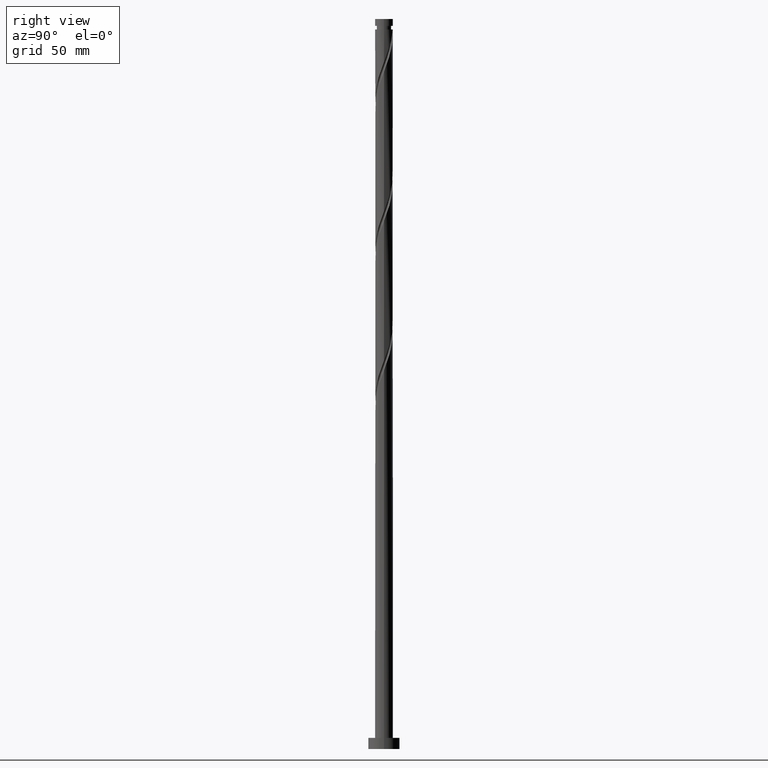
[diagram: clean part render]
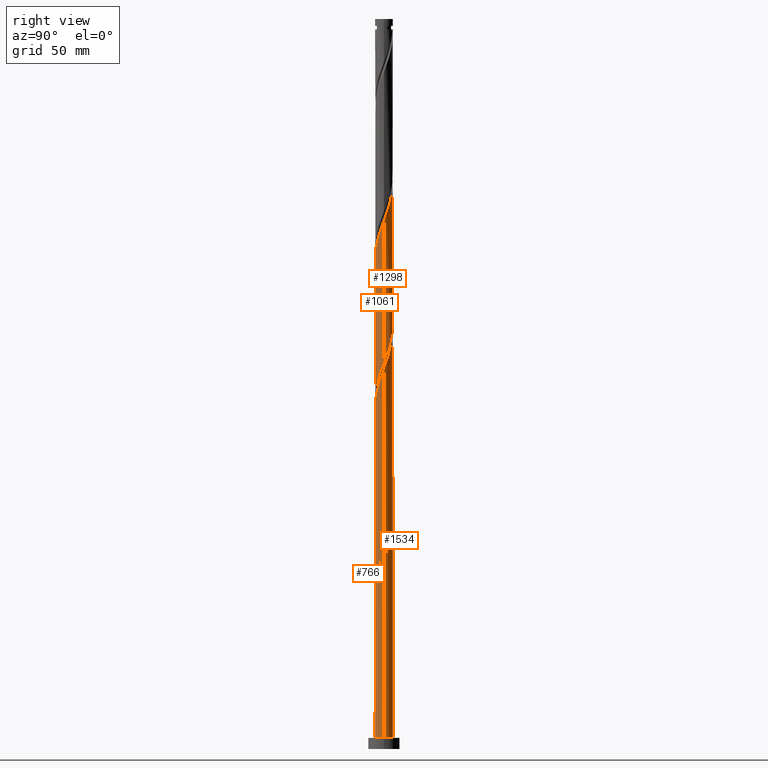
[diagram: same view with one multi-face feature highlighted, each face labeled with its STEP entity id]
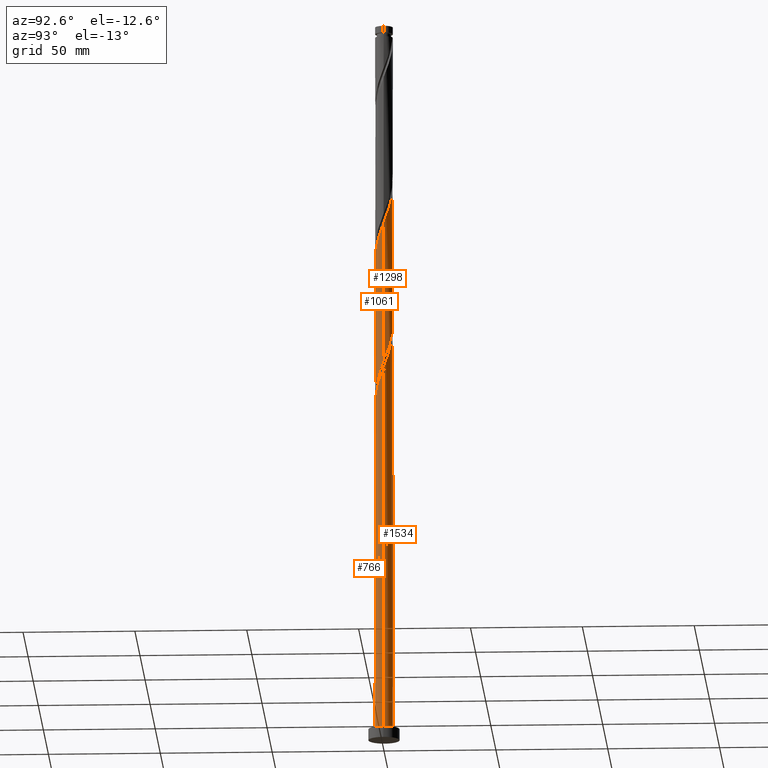
[diagram: same view with one multi-face feature highlighted, each face labeled with its STEP entity id]
A machine part, right view. The highlighted faces form ONE feature: a constant-radius fillet chain: 4 tangent blend faces with common blend radius 4 mm. The faces share edges in the B-rep.
A second angle (auxiliary view) of the same feature is appended — it is thin or edge-on in the first view.
Their STEP definitions:
[1] entity #1298 (Cylinder):
#3 = VERTEX_POINT ( 'NONE', #334 ) ;
#7 = CARTESIAN_POINT ( 'NONE',  ( 1.660148792339432688, 3.639217771347842856, 247.9750467429132357 ) ) ;
#30 = CARTESIAN_POINT ( 'NONE',  ( -0.4568176844692857230, 3.996006507438224276, 191.3083800762465216 ) ) ;
#64 = CARTESIAN_POINT ( 'NONE',  ( -0.7959899496852973488, 3.920000000000005258, 254.6417134095798929 ) ) ;
#65 = EDGE_CURVE ( 'NONE', #1295, #3, #246, .T. ) ;
#74 = CARTESIAN_POINT ( 'NONE',  ( 0.4568176844692878880, 3.996006507438230049, 251.3083800762464932 ) ) ;
#84 = CARTESIAN_POINT ( 'NONE',  ( 4.000000000000000000, 4.898587196589412829E-16, 326.0000000000000000 ) ) ;
#90 = DIRECTION ( 'NONE',  ( -0.000000000000000000, -0.000000000000000000, -1.000000000000000000 ) ) ;
#141 = CARTESIAN_POINT ( 'NONE',  ( -4.000000000000005329, 1.793809850479816147E-16, 269.1829368327250336 ) ) ;
#162 = CARTESIAN_POINT ( 'NONE',  ( -1.660148792339429136, 3.639217771347840191, 194.6417134095798360 ) ) ;
#174 =( BOUNDED_CURVE ( )  B_SPLINE_CURVE ( 2, ( #183, #1439, #657, #1750, #1283, #1599, #967, #356, #1877, #495, #365, #1117, #162, #1726, #818, #30, #666, #984, #507, #1130, #1268, #1739, #684, #408, #1641, #718, #1775, #1920, #386, #1802, #862, #735, #1314 ),
 .UNSPECIFIED., .F., .T. ) 
 B_SPLINE_CURVE_WITH_KNOTS ( ( 3, 2, 2, 2, 2, 2, 2, 2, 2, 2, 2, 2, 2, 2, 2, 2, 3 ),
 ( 0.6795286012773116280, 0.6833333333333333481, 0.6916666666666666519, 0.6999999999999999556, 0.7083333333333333703, 0.7166666666666666741, 0.7249999999999999778, 0.7333333333333332815, 0.7416666666666666963, 0.7500000000000000000, 0.7583333333333333037, 0.7666666666666667185, 0.7750000000000000222, 0.7833333333333333259, 0.7916666666666666297, 0.8000000000000000444, 0.8045286012773114059 ),
 .UNSPECIFIED. ) 
 CURVE ( )  GEOMETRIC_REPRESENTATION_ITEM ( )  RATIONAL_B_SPLINE_CURVE ( ( 0.9066196499552254817, 0.9068171577856383170, 0.9090909090909370383, 0.9041108139711855340, 0.9090909090909370383, 0.9041108139711855340, 0.9090909090909370383, 0.9041108139711855340, 0.9090909090909370383, 0.9041108139711855340, 0.9090909090909370383, 0.9041108139711855340, 0.9090909090909370383, 0.9041108139711855340, 0.9090909090909370383, 0.9041108139711855340, 0.9090909090909370383, 0.9041108139711855340, 0.9090909090909370383, 0.9041108139711855340, 0.9090909090909370383, 0.9041108139711855340, 0.9090909090909370383, 0.9041108139711855340, 0.9090909090909370383, 0.9041108139711855340, 0.9090909090909370383, 0.9041108139711855340, 0.9090909090909370383, 0.9041108139711855340, 0.9090909090909370383, 0.9063845652764843663, 0.9066196499552254817 ) ) 
 REPRESENTATION_ITEM ( '' )  );
#183 = CARTESIAN_POINT ( 'NONE',  ( -3.999999999999999112, 4.738647688350878605E-15, 206.7671566531013809 ) ) ;
#188 = CARTESIAN_POINT ( 'NONE',  ( 4.000000000000006217, 0.1913759971469944365, 236.3581520249557570 ) ) ;
#219 = CARTESIAN_POINT ( 'NONE',  ( -0.3839813474438426022, 4.003661914940843225, 253.5306022984688070 ) ) ;
#230 = CARTESIAN_POINT ( 'NONE',  ( 0.8672346379929752880, 3.904856474016071832, 250.1972689651354358 ) ) ;
#246 = LINE ( 'NONE', #84, #1287 ) ;
#334 = CARTESIAN_POINT ( 'NONE',  ( 3.999999999999999112, 4.858235011716200766E-15, 173.4338233197680665 ) ) ;
#347 = VERTEX_POINT ( 'NONE', #141 ) ;
#356 = CARTESIAN_POINT ( 'NONE',  ( -3.275282252781093639, 2.334368558936168903, 200.1972689651353789 ) ) ;
#359 = CARTESIAN_POINT ( 'NONE',  ( -1.207998551926750208, 3.836338085059167291, 255.7528245206909787 ) ) ;
#365 = CARTESIAN_POINT ( 'NONE',  ( -2.380506478182903951, 3.214527789167364258, 196.8639356318021214 ) ) ;
#380 = CARTESIAN_POINT ( 'NONE',  ( -1.593609487498514721, 3.668842978563509938, 256.8639356318020646 ) ) ;
#386 = CARTESIAN_POINT ( 'NONE',  ( 3.792814557677649301, 1.270652482415431939, 176.8639356318022067 ) ) ;
#390 = CARTESIAN_POINT ( 'NONE',  ( 1.277651591516659080, 3.813706440593914948, 249.0861578540242647 ) ) ;
#408 = CARTESIAN_POINT ( 'NONE',  ( 2.663940864372329909, 3.013331955735995660, 182.4194911873576643 ) ) ;
#468 = CARTESIAN_POINT ( 'NONE',  ( 2.718366963203611153, 2.964326476232963969, 244.6417134095798929 ) ) ;
#495 = CARTESIAN_POINT ( 'NONE',  ( -2.718366963203606268, 2.964326476232961305, 197.9750467429132073 ) ) ;
#507 = CARTESIAN_POINT ( 'NONE',  ( 0.7959899496852986811, 3.919999999999999929, 187.9750467429132073 ) ) ;
#538 = AXIS2_PLACEMENT_3D ( 'NONE', #937, #1546, #598 ) ;
#557 = DIRECTION ( 'NONE',  ( -0.000000000000000000, -0.000000000000000000, -1.000000000000000000 ) ) ;
#563 = CARTESIAN_POINT ( 'NONE',  ( -3.926365515130360695, 0.8720116088262028775, 266.8639356318020077 ) ) ;
#598 = DIRECTION ( 'NONE',  ( -1.000000000000000000, 0.000000000000000000, 0.000000000000000000 ) ) ;
#617 = LINE ( 'NONE', #1040, #1124 ) ;
#632 = CARTESIAN_POINT ( 'NONE',  ( 3.482167122072591159, 1.968378046503449275, 241.3083800762465216 ) ) ;
#657 = CARTESIAN_POINT ( 'NONE',  ( -3.981729436060731153, 0.3818778574459180675, 205.7528245206910356 ) ) ;
#666 = CARTESIAN_POINT ( 'NONE',  ( -0.03641816851271968691, 3.999834211189531086, 190.1972689651354358 ) ) ;
#678 = CARTESIAN_POINT ( 'NONE',  ( -3.232234306894794074, 2.393618973367500846, 262.4194911873576075 ) ) ;
#682 = VERTEX_POINT ( 'NONE', #1869 ) ;
#684 = CARTESIAN_POINT ( 'NONE',  ( 2.321580643721306014, 3.257339913901919903, 183.5306022984688070 ) ) ;
#688 = CARTESIAN_POINT ( 'NONE',  ( -4.000000000000005329, 1.793809850479816147E-16, 269.1829368327250336 ) ) ;
#699 = CARTESIAN_POINT ( 'NONE',  ( -1.979220423070278789, 3.501347872067851252, 257.9750467429131504 ) ) ;
#709 = CARTESIAN_POINT ( 'NONE',  ( -2.321580643721305570, 3.257339913901927009, 259.0861578540243499 ) ) ;
#715 = EDGE_CURVE ( 'NONE', #682, #3, #174, .T. ) ;
#718 = CARTESIAN_POINT ( 'NONE',  ( 3.232234306894791853, 2.393618973367495073, 180.1972689651354358 ) ) ;
#735 = CARTESIAN_POINT ( 'NONE',  ( 3.999999999999999112, 0.2278949497857320761, 174.0394146291525885 ) ) ;
#736 = EDGE_LOOP ( 'NONE', ( #749, #1724, #1767, #1861 ) ) ;
#749 = ORIENTED_EDGE ( 'NONE', *, *, #1574, .F. ) ;
#758 = CYLINDRICAL_SURFACE ( 'NONE', #538, 4.000000000000000000 ) ;
#796 = CARTESIAN_POINT ( 'NONE',  ( 3.689051991364082905, 1.602387534070725872, 240.1972689651354074 ) ) ;
#818 = CARTESIAN_POINT ( 'NONE',  ( -0.8672346379929704030, 3.904856474016069612, 192.4194911873576928 ) ) ;
#822 = CARTESIAN_POINT ( 'NONE',  ( 3.941592455888989655, 0.8003744848579132931, 237.9750467429131504 ) ) ;
#845 = CARTESIAN_POINT ( 'NONE',  ( -3.659263600224945012, 1.669293356004671880, 264.6417134095798929 ) ) ;
#862 = CARTESIAN_POINT ( 'NONE',  ( 3.974115965681417784, 0.4543151893961389631, 174.6417134095798929 ) ) ;
#937 = CARTESIAN_POINT ( 'NONE',  ( 0.000000000000000000, 0.000000000000000000, 326.0000000000000000 ) ) ;
#967 = CARTESIAN_POINT ( 'NONE',  ( -3.482167122072584942, 1.968378046503447942, 201.3083800762465501 ) ) ;
#984 = CARTESIAN_POINT ( 'NONE',  ( 0.3839813474438459329, 4.003661914940836120, 189.0861578540242931 ) ) ;
#1040 = CARTESIAN_POINT ( 'NONE',  ( -4.000000000000000000, 0.000000000000000000, 326.0000000000000000 ) ) ;
#1096 =( BOUNDED_CURVE ( )  B_SPLINE_CURVE ( 2, ( #1893, #188, #1425, #822, #1743, #796, #632, #1253, #1851, #468, #1417, #1865, #7, #390, #230, #74, #1454, #219, #64, #359, #380, #699, #709, #1612, #1144, #678, #1299, #845, #1464, #563, #1944, #1479, #688 ),
 .UNSPECIFIED., .F., .T. ) 
 B_SPLINE_CURVE_WITH_KNOTS ( ( 3, 2, 2, 2, 2, 2, 2, 2, 2, 2, 2, 2, 2, 2, 2, 2, 3 ),
 ( 0.4295286012773114614, 0.4333333333333333481, 0.4416666666666666519, 0.4499999999999999556, 0.4583333333333333703, 0.4666666666666666741, 0.4749999999999999778, 0.4833333333333332815, 0.4916666666666666963, 0.5000000000000000000, 0.5083333333333333037, 0.5166666666666666075, 0.5250000000000000222, 0.5333333333333333259, 0.5416666666666667407, 0.5500000000000000444, 0.5545286012773112949 ),
 .UNSPECIFIED. ) 
 CURVE ( )  GEOMETRIC_REPRESENTATION_ITEM ( )  RATIONAL_B_SPLINE_CURVE ( ( 0.9066196499552313659, 0.9068171577856440901, 0.9090909090909430335, 0.9041108139711913072, 0.9090909090909430335, 0.9041108139711913072, 0.9090909090909430335, 0.9041108139711913072, 0.9090909090909430335, 0.9041108139711913072, 0.9090909090909430335, 0.9041108139711913072, 0.9090909090909430335, 0.9041108139711913072, 0.9090909090909430335, 0.9041108139711913072, 0.9090909090909430335, 0.9041108139711913072, 0.9090909090909430335, 0.9041108139711913072, 0.9090909090909430335, 0.9041108139711913072, 0.9090909090909430335, 0.9041108139711913072, 0.9090909090909430335, 0.9041108139711913072, 0.9090909090909430335, 0.9041108139711913072, 0.9090909090909430335, 0.9041108139711913072, 0.9090909090909430335, 0.9063845652764903615, 0.9066196499552313659 ) ) 
 REPRESENTATION_ITEM ( '' )  );
#1117 = CARTESIAN_POINT ( 'NONE',  ( -2.042645993162202522, 3.464729102101767211, 195.7528245206909787 ) ) ;
#1124 = VECTOR ( 'NONE', #90, 1000.000000000000000 ) ;
#1130 = CARTESIAN_POINT ( 'NONE',  ( 1.207998551926752429, 3.836338085059161518, 186.8639356318021214 ) ) ;
#1144 = CARTESIAN_POINT ( 'NONE',  ( -2.948087585633563101, 2.703475464551751806, 261.3083800762465785 ) ) ;
#1253 = CARTESIAN_POINT ( 'NONE',  ( 3.275282252781099412, 2.334368558936169791, 242.4194911873575791 ) ) ;
#1268 = CARTESIAN_POINT ( 'NONE',  ( 1.593609487498514943, 3.668842978563503721, 185.7528245206910071 ) ) ;
#1283 = CARTESIAN_POINT ( 'NONE',  ( -3.815322223626530285, 1.201381009464321137, 203.5306022984688354 ) ) ;
#1287 = VECTOR ( 'NONE', #557, 1000.000000000000000 ) ;
#1295 = VERTEX_POINT ( 'NONE', #1520 ) ;
#1298 = ADVANCED_FACE ( 'NONE', ( #1514 ), #758, .T. ) ;
#1299 = CARTESIAN_POINT ( 'NONE',  ( -3.445748953559869321, 2.031456164686087806, 263.5306022984687502 ) ) ;
#1314 = CARTESIAN_POINT ( 'NONE',  ( 3.999999999999999112, 4.858235011716200766E-15, 173.4338233197680665 ) ) ;
#1417 = CARTESIAN_POINT ( 'NONE',  ( 2.380506478182909724, 3.214527789167367366, 245.7528245206910356 ) ) ;
#1425 = CARTESIAN_POINT ( 'NONE',  ( 3.981729436060737815, 0.3818778574459142927, 236.8639356318021498 ) ) ;
#1439 = CARTESIAN_POINT ( 'NONE',  ( -3.999999999999999112, 0.1913759971470064269, 206.2586081275373431 ) ) ;
#1454 = CARTESIAN_POINT ( 'NONE',  ( 0.03641816851272264288, 3.999834211189538191, 252.4194911873576359 ) ) ;
#1464 = CARTESIAN_POINT ( 'NONE',  ( -3.792814557677652854, 1.270652482415437712, 265.7528245206909787 ) ) ;
#1479 = CARTESIAN_POINT ( 'NONE',  ( -4.000000000000004441, 0.2278949497857409856, 268.5773455233403979 ) ) ;
#1514 = FACE_OUTER_BOUND ( 'NONE', #736, .T. ) ;
#1520 = CARTESIAN_POINT ( 'NONE',  ( 4.000000000000006217, 1.494841542066513406E-15, 235.8496034993917476 ) ) ;
#1546 = DIRECTION ( 'NONE',  ( -0.000000000000000000, -0.000000000000000000, -1.000000000000000000 ) ) ;
#1574 = EDGE_CURVE ( 'NONE', #1295, #347, #1096, .T. ) ;
#1599 = CARTESIAN_POINT ( 'NONE',  ( -3.689051991364075356, 1.602387534070727426, 202.4194911873576643 ) ) ;
#1612 = CARTESIAN_POINT ( 'NONE',  ( -2.663940864372332129, 3.013331955736002321, 260.1972689651353221 ) ) ;
#1641 = CARTESIAN_POINT ( 'NONE',  ( 2.948087585633560437, 2.703475464551747365, 181.3083800762465216 ) ) ;
#1684 = EDGE_CURVE ( 'NONE', #347, #682, #617, .T. ) ;
#1724 = ORIENTED_EDGE ( 'NONE', *, *, #65, .T. ) ;
#1726 = CARTESIAN_POINT ( 'NONE',  ( -1.277651591516654639, 3.813706440593910951, 193.5306022984687786 ) ) ;
#1739 = CARTESIAN_POINT ( 'NONE',  ( 1.979220423070277901, 3.501347872067845479, 184.6417134095798360 ) ) ;
#1743 = CARTESIAN_POINT ( 'NONE',  ( 3.815322223626536502, 1.201381009464319582, 239.0861578540243215 ) ) ;
#1750 = CARTESIAN_POINT ( 'NONE',  ( -3.941592455888983437, 0.8003744848579138482, 204.6417134095798929 ) ) ;
#1767 = ORIENTED_EDGE ( 'NONE', *, *, #715, .F. ) ;
#1775 = CARTESIAN_POINT ( 'NONE',  ( 3.445748953559866212, 2.031456164686082033, 179.0861578540243784 ) ) ;
#1802 = CARTESIAN_POINT ( 'NONE',  ( 3.926365515130356698, 0.8720116088261987697, 175.7528245206909787 ) ) ;
#1851 = CARTESIAN_POINT ( 'NONE',  ( 2.996824607992357947, 2.649347517584565548, 243.5306022984688354 ) ) ;
#1861 = ORIENTED_EDGE ( 'NONE', *, *, #1684, .F. ) ;
#1865 = CARTESIAN_POINT ( 'NONE',  ( 2.042645993162208740, 3.464729102101769875, 246.8639356318020361 ) ) ;
#1869 = CARTESIAN_POINT ( 'NONE',  ( -3.999999999999999112, 4.738647688350878605E-15, 206.7671566531013809 ) ) ;
#1877 = CARTESIAN_POINT ( 'NONE',  ( -2.996824607992349510, 2.649347517584564660, 199.0861578540243784 ) ) ;
#1893 = CARTESIAN_POINT ( 'NONE',  ( 4.000000000000006217, 1.494841542066513604E-15, 235.8496034993917476 ) ) ;
#1920 = CARTESIAN_POINT ( 'NONE',  ( 3.659263600224941015, 1.669293356004667883, 177.9750467429131504 ) ) ;
#1944 = CARTESIAN_POINT ( 'NONE',  ( -3.974115965681422669, 0.4543151893961411281, 267.9750467429131504 ) ) ;
[2] entity #1061 (Cylinder):
#3 = VERTEX_POINT ( 'NONE', #334 ) ;
#39 = EDGE_CURVE ( 'NONE', #1875, #1740, #816, .T. ) ;
#43 = CARTESIAN_POINT ( 'NONE',  ( 3.659263600224944124, -1.669293356004672324, 231.3083800762465216 ) ) ;
#52 = CARTESIAN_POINT ( 'NONE',  ( -3.941592455888989655, -0.8003744848579138482, 204.6417134095798644 ) ) ;
#62 = CARTESIAN_POINT ( 'NONE',  ( -4.000000000000005329, -2.840198929926375689E-15, 202.5162701660584048 ) ) ;
#65 = EDGE_CURVE ( 'NONE', #1295, #3, #246, .T. ) ;
#84 = CARTESIAN_POINT ( 'NONE',  ( 4.000000000000000000, 4.898587196589412829E-16, 326.0000000000000000 ) ) ;
#95 = CARTESIAN_POINT ( 'NONE',  ( -3.792814557677647969, -1.270652482415433715, 143.5306022984687502 ) ) ;
#98 = CARTESIAN_POINT ( 'NONE',  ( 2.321580643721305126, -3.257339913901928341, 225.7528245206910071 ) ) ;
#171 = CARTESIAN_POINT ( 'NONE',  ( 3.999999999999999112, -0.1913759971469969623, 172.9252747942040003 ) ) ;
#208 = CARTESIAN_POINT ( 'NONE',  ( 2.948087585633562657, -2.703475464551751806, 227.9750467429132357 ) ) ;
#217 = CARTESIAN_POINT ( 'NONE',  ( 0.3839813474438448226, -4.003661914940843225, 220.1972689651354358 ) ) ;
#246 = LINE ( 'NONE', #84, #1287 ) ;
#264 = CARTESIAN_POINT ( 'NONE',  ( -2.321580643721303794, -3.257339913901921680, 150.1972689651354358 ) ) ;
#319 = ORIENTED_EDGE ( 'NONE', *, *, #39, .T. ) ;
#334 = CARTESIAN_POINT ( 'NONE',  ( 3.999999999999999112, 4.858235011716200766E-15, 173.4338233197680665 ) ) ;
#335 = CARTESIAN_POINT ( 'NONE',  ( 3.275282252781091863, -2.334368558936170679, 166.8639356318020646 ) ) ;
#345 = CARTESIAN_POINT ( 'NONE',  ( 0.4568176844692852789, -3.996006507438224276, 157.9750467429132357 ) ) ;
#349 = CARTESIAN_POINT ( 'NONE',  ( -0.03641816851272211553, -3.999834211189538191, 219.0861578540243499 ) ) ;
#378 = CARTESIAN_POINT ( 'NONE',  ( -3.815322223626536058, -1.201381009464321359, 205.7528245206910071 ) ) ;
#395 = CARTESIAN_POINT ( 'NONE',  ( -2.663940864372329465, -3.013331955735995660, 149.0861578540242931 ) ) ;
#419 = ORIENTED_EDGE ( 'NONE', *, *, #65, .F. ) ;
#420 = CARTESIAN_POINT ( 'NONE',  ( 3.232234306894793185, -2.393618973367501734, 229.0861578540243215 ) ) ;
#509 = CARTESIAN_POINT ( 'NONE',  ( -3.689051991364082017, -1.602387534070728092, 206.8639356318020361 ) ) ;
#511 = EDGE_CURVE ( 'NONE', #3, #1740, #1979, .T. ) ;
#534 = VECTOR ( 'NONE', #1128, 1000.000000000000000 ) ;
#540 = CARTESIAN_POINT ( 'NONE',  ( 3.974115965681422669, -0.4543151893961415166, 234.6417134095798929 ) ) ;
#557 = DIRECTION ( 'NONE',  ( -0.000000000000000000, -0.000000000000000000, -1.000000000000000000 ) ) ;
#568 = CARTESIAN_POINT ( 'NONE',  ( -4.000000000000000888, 1.589016559216714528E-14, 140.1004899864346953 ) ) ;
#583 = CARTESIAN_POINT ( 'NONE',  ( -2.996824607992354839, -2.649347517584567768, 210.1972689651354074 ) ) ;
#609 = DIRECTION ( 'NONE',  ( -0.000000000000000000, -0.000000000000000000, -1.000000000000000000 ) ) ;
#647 = CARTESIAN_POINT ( 'NONE',  ( 3.689051991364074468, -1.602387534070728536, 169.0861578540243215 ) ) ;
#656 = CARTESIAN_POINT ( 'NONE',  ( 3.981729436060731153, -0.3818778574459192887, 172.4194911873576928 ) ) ;
#672 = CARTESIAN_POINT ( 'NONE',  ( 2.996824607992349065, -2.649347517584566436, 165.7528245206909787 ) ) ;
#686 = CARTESIAN_POINT ( 'NONE',  ( 4.000000000000006217, 1.494841542066513604E-15, 235.8496034993917476 ) ) ;
#697 = CARTESIAN_POINT ( 'NONE',  ( -0.4568176844692873884, -3.996006507438230049, 217.9750467429132073 ) ) ;
#704 = CARTESIAN_POINT ( 'NONE',  ( -4.000000000000000000, -0.2278949497857279405, 140.7060812958192457 ) ) ;
#726 = CARTESIAN_POINT ( 'NONE',  ( -3.659263600224941015, -1.669293356004668549, 144.6417134095798360 ) ) ;
#737 = CARTESIAN_POINT ( 'NONE',  ( -1.277651591516658636, -3.813706440593915392, 215.7528245206909503 ) ) ;
#788 = DIRECTION ( 'NONE',  ( -1.000000000000000000, 0.000000000000000000, 0.000000000000000000 ) ) ;
#816 = LINE ( 'NONE', #1274, #534 ) ;
#853 = CARTESIAN_POINT ( 'NONE',  ( 3.792814557677652409, -1.270652482415439044, 232.4194911873576643 ) ) ;
#873 = CARTESIAN_POINT ( 'NONE',  ( -0.7959899496852983480, -3.919999999999999929, 154.6417134095799497 ) ) ;
#963 = AXIS2_PLACEMENT_3D ( 'NONE', #1983, #609, #788 ) ;
#966 = CARTESIAN_POINT ( 'NONE',  ( 2.718366963203605824, -2.964326476232961749, 164.6417134095798929 ) ) ;
#977 = CARTESIAN_POINT ( 'NONE',  ( 1.979220423070278345, -3.501347872067851696, 224.6417134095798076 ) ) ;
#986 = CARTESIAN_POINT ( 'NONE',  ( -3.275282252781098524, -2.334368558936170679, 209.0861578540243499 ) ) ;
#1005 = CARTESIAN_POINT ( 'NONE',  ( -1.207998551926750652, -3.836338085059161518, 153.5306022984688070 ) ) ;
#1016 = CARTESIAN_POINT ( 'NONE',  ( -1.979220423070277013, -3.501347872067846367, 151.3083800762464932 ) ) ;
#1047 = CARTESIAN_POINT ( 'NONE',  ( -2.948087585633560437, -2.703475464551747365, 147.9750467429132357 ) ) ;
#1061 = ADVANCED_FACE ( 'NONE', ( #1246 ), #1689, .T. ) ;
#1108 = CARTESIAN_POINT ( 'NONE',  ( 3.999999999999999112, 4.858235011716200766E-15, 173.4338233197680665 ) ) ;
#1128 = DIRECTION ( 'NONE',  ( -0.000000000000000000, -0.000000000000000000, -1.000000000000000000 ) ) ;
#1129 = CARTESIAN_POINT ( 'NONE',  ( 1.277651591516653973, -3.813706440593911839, 160.1972689651354074 ) ) ;
#1132 = CARTESIAN_POINT ( 'NONE',  ( -1.660148792339432244, -3.639217771347842856, 214.6417134095799213 ) ) ;
#1142 = CARTESIAN_POINT ( 'NONE',  ( -4.000000000000005329, -0.1913759971470017363, 203.0248186916224427 ) ) ;
#1246 = FACE_OUTER_BOUND ( 'NONE', #1910, .T. ) ;
#1274 = CARTESIAN_POINT ( 'NONE',  ( -4.000000000000000000, 0.000000000000000000, 326.0000000000000000 ) ) ;
#1287 = VECTOR ( 'NONE', #557, 1000.000000000000000 ) ;
#1295 = VERTEX_POINT ( 'NONE', #1520 ) ;
#1296 = CARTESIAN_POINT ( 'NONE',  ( -2.718366963203609821, -2.964326476232964414, 211.3083800762465216 ) ) ;
#1316 = CARTESIAN_POINT ( 'NONE',  ( 0.7959899496852976819, -3.920000000000005258, 221.3083800762465501 ) ) ;
#1342 = CARTESIAN_POINT ( 'NONE',  ( -3.232234306894790077, -2.393618973367496405, 146.8639356318021214 ) ) ;
#1346 = CARTESIAN_POINT ( 'NONE',  ( -4.000000000000000888, 1.589016559216714213E-14, 140.1004899864346953 ) ) ;
#1354 = CARTESIAN_POINT ( 'NONE',  ( 3.445748953559869321, -2.031456164686088695, 230.1972689651354642 ) ) ;
#1364 = ORIENTED_EDGE ( 'NONE', *, *, #1852, .F. ) ;
#1438 = CARTESIAN_POINT ( 'NONE',  ( 2.042645993162201190, -3.464729102101767211, 162.4194911873576928 ) ) ;
#1451 = CARTESIAN_POINT ( 'NONE',  ( -3.482167122072591159, -1.968378046503449275, 207.9750467429132357 ) ) ;
#1467 = CARTESIAN_POINT ( 'NONE',  ( 3.815322223626529397, -1.201381009464323579, 170.1972689651354358 ) ) ;
#1470 = CARTESIAN_POINT ( 'NONE',  ( -2.380506478182908836, -3.214527789167367366, 212.4194911873576928 ) ) ;
#1487 = CARTESIAN_POINT ( 'NONE',  ( -1.593609487498514721, -3.668842978563503721, 152.4194911873576643 ) ) ;
#1520 = CARTESIAN_POINT ( 'NONE',  ( 4.000000000000006217, 1.494841542066513406E-15, 235.8496034993917476 ) ) ;
#1579 =( BOUNDED_CURVE ( )  B_SPLINE_CURVE ( 2, ( #62, #1142, #1768, #52, #378, #509, #1451, #986, #583, #1296, #1470, #1965, #1132, #737, #1804, #697, #349, #217, #1316, #1890, #1922, #977, #98, #1592, #208, #420, #1354, #43, #853, #1752, #540, #1741, #686 ),
 .UNSPECIFIED., .F., .T. ) 
 B_SPLINE_CURVE_WITH_KNOTS ( ( 3, 2, 2, 2, 2, 2, 2, 2, 2, 2, 2, 2, 2, 2, 2, 2, 3 ),
 ( 0.3045286012773115725, 0.3083333333333333481, 0.3166666666666666519, 0.3249999999999999556, 0.3333333333333333703, 0.3416666666666666741, 0.3499999999999999778, 0.3583333333333332815, 0.3666666666666666963, 0.3750000000000000000, 0.3833333333333333037, 0.3916666666666667185, 0.4000000000000000222, 0.4083333333333333259, 0.4166666666666666297, 0.4250000000000000444, 0.4295286012773114614 ),
 .UNSPECIFIED. ) 
 CURVE ( )  GEOMETRIC_REPRESENTATION_ITEM ( )  RATIONAL_B_SPLINE_CURVE ( ( 0.9066196499552313659, 0.9068171577856442012, 0.9090909090909430335, 0.9041108139711913072, 0.9090909090909430335, 0.9041108139711913072, 0.9090909090909430335, 0.9041108139711913072, 0.9090909090909430335, 0.9041108139711913072, 0.9090909090909430335, 0.9041108139711913072, 0.9090909090909430335, 0.9041108139711913072, 0.9090909090909430335, 0.9041108139711913072, 0.9090909090909430335, 0.9041108139711913072, 0.9090909090909430335, 0.9041108139711913072, 0.9090909090909430335, 0.9041108139711913072, 0.9090909090909430335, 0.9041108139711913072, 0.9090909090909430335, 0.9041108139711913072, 0.9090909090909430335, 0.9041108139711913072, 0.9090909090909430335, 0.9041108139711913072, 0.9090909090909430335, 0.9063845652764901395, 0.9066196499552313659 ) ) 
 REPRESENTATION_ITEM ( '' )  );
#1580 = CARTESIAN_POINT ( 'NONE',  ( 2.380506478182902619, -3.214527789167365146, 163.5306022984688639 ) ) ;
#1589 = CARTESIAN_POINT ( 'NONE',  ( 0.03641816851271873628, -3.999834211189531086, 156.8639356318021498 ) ) ;
#1591 = ORIENTED_EDGE ( 'NONE', *, *, #511, .F. ) ;
#1592 = CARTESIAN_POINT ( 'NONE',  ( 2.663940864372332129, -3.013331955736003209, 226.8639356318020930 ) ) ;
#1598 = CARTESIAN_POINT ( 'NONE',  ( 3.482167122072584942, -1.968378046503447942, 167.9750467429132357 ) ) ;
#1629 = CARTESIAN_POINT ( 'NONE',  ( -3.974115965681418672, -0.4543151893961394627, 141.3083800762465501 ) ) ;
#1689 = CYLINDRICAL_SURFACE ( 'NONE', #963, 4.000000000000000000 ) ;
#1738 = CARTESIAN_POINT ( 'NONE',  ( 0.8672346379929689597, -3.904856474016070056, 159.0861578540243784 ) ) ;
#1740 = VERTEX_POINT ( 'NONE', #1346 ) ;
#1741 = CARTESIAN_POINT ( 'NONE',  ( 4.000000000000006217, -0.2278949497857335194, 235.2440121900071688 ) ) ;
#1752 = CARTESIAN_POINT ( 'NONE',  ( 3.926365515130359807, -0.8720116088262054310, 233.5306022984686933 ) ) ;
#1759 = CARTESIAN_POINT ( 'NONE',  ( -4.000000000000005329, -2.840198929926375689E-15, 202.5162701660584048 ) ) ;
#1768 = CARTESIAN_POINT ( 'NONE',  ( -3.981729436060737815, -0.3818778574459164021, 203.5306022984687786 ) ) ;
#1782 = CARTESIAN_POINT ( 'NONE',  ( -0.3839813474438479313, -4.003661914940837008, 155.7528245206909787 ) ) ;
#1801 = CARTESIAN_POINT ( 'NONE',  ( -3.926365515130356698, -0.8720116088262001020, 142.4194911873576643 ) ) ;
#1804 = CARTESIAN_POINT ( 'NONE',  ( -0.8672346379929732896, -3.904856474016073165, 216.8639356318020930 ) ) ;
#1852 = EDGE_CURVE ( 'NONE', #1875, #1295, #1579, .T. ) ;
#1875 = VERTEX_POINT ( 'NONE', #1759 ) ;
#1876 = CARTESIAN_POINT ( 'NONE',  ( 3.941592455888983437, -0.8003744848579144033, 171.3083800762465501 ) ) ;
#1885 = CARTESIAN_POINT ( 'NONE',  ( 1.660148792339428692, -3.639217771347840191, 161.3083800762466069 ) ) ;
#1890 = CARTESIAN_POINT ( 'NONE',  ( 1.207998551926748876, -3.836338085059167291, 222.4194911873576643 ) ) ;
#1910 = EDGE_LOOP ( 'NONE', ( #419, #1364, #319, #1591 ) ) ;
#1922 = CARTESIAN_POINT ( 'NONE',  ( 1.593609487498513833, -3.668842978563509938, 223.5306022984687786 ) ) ;
#1929 = CARTESIAN_POINT ( 'NONE',  ( -3.445748953559866212, -2.031456164686082033, 145.7528245206910356 ) ) ;
#1965 = CARTESIAN_POINT ( 'NONE',  ( -2.042645993162207407, -3.464729102101771208, 213.5306022984687218 ) ) ;
#1979 =( BOUNDED_CURVE ( )  B_SPLINE_CURVE ( 2, ( #1108, #171, #656, #1876, #1467, #647, #1598, #335, #672, #966, #1580, #1438, #1885, #1129, #1738, #345, #1589, #1782, #873, #1005, #1487, #1016, #264, #395, #1047, #1342, #1929, #726, #95, #1801, #1629, #704, #568 ),
 .UNSPECIFIED., .F., .T. ) 
 B_SPLINE_CURVE_WITH_KNOTS ( ( 3, 2, 2, 2, 2, 2, 2, 2, 2, 2, 2, 2, 2, 2, 2, 2, 3 ),
 ( 0.8045286012773114059, 0.8083333333333333481, 0.8166666666666666519, 0.8249999999999999556, 0.8333333333333333703, 0.8416666666666666741, 0.8499999999999999778, 0.8583333333333332815, 0.8666666666666666963, 0.8750000000000000000, 0.8833333333333333037, 0.8916666666666667185, 0.9000000000000000222, 0.9083333333333333259, 0.9166666666666666297, 0.9250000000000000444, 0.9295286012773115170 ),
 .UNSPECIFIED. ) 
 CURVE ( )  GEOMETRIC_REPRESENTATION_ITEM ( )  RATIONAL_B_SPLINE_CURVE ( ( 0.9066196499552254817, 0.9068171577856382060, 0.9090909090909370383, 0.9041108139711855340, 0.9090909090909370383, 0.9041108139711855340, 0.9090909090909370383, 0.9041108139711855340, 0.9090909090909370383, 0.9041108139711855340, 0.9090909090909370383, 0.9041108139711855340, 0.9090909090909370383, 0.9041108139711855340, 0.9090909090909370383, 0.9041108139711855340, 0.9090909090909370383, 0.9041108139711855340, 0.9090909090909370383, 0.9041108139711855340, 0.9090909090909370383, 0.9041108139711855340, 0.9090909090909370383, 0.9041108139711855340, 0.9090909090909370383, 0.9041108139711855340, 0.9090909090909370383, 0.9041108139711855340, 0.9090909090909370383, 0.9041108139711855340, 0.9090909090909370383, 0.9063845652764843663, 0.9066196499552255927 ) ) 
 REPRESENTATION_ITEM ( '' )  );
#1983 = CARTESIAN_POINT ( 'NONE',  ( 0.000000000000000000, 0.000000000000000000, 326.0000000000000000 ) ) ;
[3] entity #1534 (Cylinder):
#16 = DIRECTION ( 'NONE',  ( -0.000000000000000000, -0.000000000000000000, -1.000000000000000000 ) ) ;
#34 = DIRECTION ( 'NONE',  ( -1.000000000000000000, 0.000000000000000000, 0.000000000000000000 ) ) ;
#37 = DIRECTION ( 'NONE',  ( 0.000000000000000000, 1.000000000000000000, -1.040834085586084257E-14 ) ) ;
#39 = EDGE_CURVE ( 'NONE', #1875, #1740, #816, .T. ) ;
#118 = CARTESIAN_POINT ( 'NONE',  ( 0.7959899496852986811, 3.919999999999999929, 121.3083800762465643 ) ) ;
#120 = CARTESIAN_POINT ( 'NONE',  ( -0.7959899496852973488, 3.920000000000005258, 187.9750467429132357 ) ) ;
#128 = CARTESIAN_POINT ( 'NONE',  ( -3.941592455888983437, 0.8003744848579138482, 137.9750467429132357 ) ) ;
#138 = CARTESIAN_POINT ( 'NONE',  ( -3.482167122072584942, 1.968378046503447942, 134.6417134095799213 ) ) ;
#157 = FACE_OUTER_BOUND ( 'NONE', #1899, .T. ) ;
#161 = CARTESIAN_POINT ( 'NONE',  ( 4.000000000000000000, 4.898587196589412829E-16, 5.000000000000000000 ) ) ;
#179 = EDGE_CURVE ( 'NONE', #1194, #1875, #679, .T. ) ;
#228 = CARTESIAN_POINT ( 'NONE',  ( -4.000000000000006217, 0.2278949497857291340, 135.2440121900071688 ) ) ;
#240 = VECTOR ( 'NONE', #585, 1000.000000000000000 ) ;
#266 = VERTEX_POINT ( 'NONE', #161 ) ;
#275 = ORIENTED_EDGE ( 'NONE', *, *, #179, .F. ) ;
#276 = DIRECTION ( 'NONE',  ( 0.000000000000000000, 0.000000000000000000, 1.000000000000000000 ) ) ;
#286 = CARTESIAN_POINT ( 'NONE',  ( 0.000000000000000000, 0.000000000000000000, 5.000000000000000000 ) ) ;
#297 = CARTESIAN_POINT ( 'NONE',  ( 3.815322223626536502, 1.201381009464319582, 172.4194911873576643 ) ) ;
#308 = CARTESIAN_POINT ( 'NONE',  ( 0.4568176844692878880, 3.996006507438230049, 184.6417134095799213 ) ) ;
#317 = CARTESIAN_POINT ( 'NONE',  ( 4.000000000000005329, 0.1913759971470014309, 169.6914853582891283 ) ) ;
#321 = CARTESIAN_POINT ( 'NONE',  ( -2.948087585633563101, 2.703475464551751806, 127.9750467429132073 ) ) ;
#329 = EDGE_CURVE ( 'NONE', #266, #1964, #1603, .T. ) ;
#332 = CIRCLE ( 'NONE', #1990, 4.000000000000000000 ) ;
#368 = CARTESIAN_POINT ( 'NONE',  ( -3.659263600224945012, 1.669293356004671880, 131.3083800762465785 ) ) ;
#409 = VERTEX_POINT ( 'NONE', #1868 ) ;
#434 = AXIS2_PLACEMENT_3D ( 'NONE', #954, #16, #34 ) ;
#440 = CARTESIAN_POINT ( 'NONE',  ( -1.660148792339429136, 3.639217771347840191, 127.9750467429132215 ) ) ;
#442 = CARTESIAN_POINT ( 'NONE',  ( -3.974115965681422669, 0.4543151893961411281, 201.3083800762465501 ) ) ;
#449 = CARTESIAN_POINT ( 'NONE',  ( -4.000000000000000888, 1.589016559216714528E-14, 140.1004899864346953 ) ) ;
#451 = CARTESIAN_POINT ( 'NONE',  ( -2.663940864372332129, 3.013331955736002321, 193.5306022984687502 ) ) ;
#460 = CARTESIAN_POINT ( 'NONE',  ( 4.000000000000006217, 1.494841542066513406E-15, 169.1829368327250904 ) ) ;
#462 = CARTESIAN_POINT ( 'NONE',  ( 0.8672346379929752880, 3.904856474016071832, 183.5306022984688070 ) ) ;
#467 = EDGE_CURVE ( 'NONE', #409, #1631, #332, .T. ) ;
#475 = CARTESIAN_POINT ( 'NONE',  ( 3.482167122072591159, 1.968378046503449275, 174.6417134095798644 ) ) ;
#477 = ORIENTED_EDGE ( 'NONE', *, *, #329, .T. ) ;
#506 = CARTESIAN_POINT ( 'NONE',  ( 0.000000000000000000, 0.000000000000000000, 121.3083800762465927 ) ) ;
#518 = CARTESIAN_POINT ( 'NONE',  ( -3.792814557677652854, 1.270652482415437712, 132.4194911873576928 ) ) ;
#534 = VECTOR ( 'NONE', #1128, 1000.000000000000000 ) ;
#585 = DIRECTION ( 'NONE',  ( -0.000000000000000000, -0.000000000000000000, -1.000000000000000000 ) ) ;
#611 = CARTESIAN_POINT ( 'NONE',  ( -0.3839813474438426022, 4.003661914940843225, 186.8639356318021214 ) ) ;
#625 = CARTESIAN_POINT ( 'NONE',  ( -2.948087585633563101, 2.703475464551751806, 194.6417134095798360 ) ) ;
#637 = CARTESIAN_POINT ( 'NONE',  ( 3.981729436060737815, 0.3818778574459142927, 170.1972689651354926 ) ) ;
#679 =( BOUNDED_CURVE ( )  B_SPLINE_CURVE ( 2, ( #1387, #317, #637, #1237, #297, #1248, #475, #1834, #1816, #928, #1078, #940, #1691, #1825, #462, #308, #1549, #611, #120, #1680, #1539, #1102, #1846, #451, #625, #1672, #1712, #948, #1089, #1985, #442, #1700, #1521 ),
 .UNSPECIFIED., .F., .T. ) 
 B_SPLINE_CURVE_WITH_KNOTS ( ( 3, 2, 2, 2, 2, 2, 2, 2, 2, 2, 2, 2, 2, 2, 2, 2, 3 ),
 ( 0.1795286012773116002, 0.1833333333333333481, 0.1916666666666666519, 0.1999999999999999556, 0.2083333333333333703, 0.2166666666666666741, 0.2249999999999999778, 0.2333333333333332815, 0.2416666666666666963, 0.2500000000000000000, 0.2583333333333333037, 0.2666666666666667185, 0.2750000000000000222, 0.2833333333333333259, 0.2916666666666666297, 0.3000000000000000444, 0.3045286012773115725 ),
 .UNSPECIFIED. ) 
 CURVE ( )  GEOMETRIC_REPRESENTATION_ITEM ( )  RATIONAL_B_SPLINE_CURVE ( ( 0.9066196499552314769, 0.9068171577856442012, 0.9090909090909430335, 0.9041108139711913072, 0.9090909090909430335, 0.9041108139711913072, 0.9090909090909430335, 0.9041108139711913072, 0.9090909090909430335, 0.9041108139711913072, 0.9090909090909430335, 0.9041108139711913072, 0.9090909090909430335, 0.9041108139711913072, 0.9090909090909430335, 0.9041108139711913072, 0.9090909090909430335, 0.9041108139711913072, 0.9090909090909430335, 0.9041108139711913072, 0.9090909090909430335, 0.9041108139711913072, 0.9090909090909430335, 0.9041108139711913072, 0.9090909090909430335, 0.9041108139711913072, 0.9090909090909430335, 0.9041108139711913072, 0.9090909090909430335, 0.9041108139711913072, 0.9090909090909430335, 0.9063845652764901395, 0.9066196499552313659 ) ) 
 REPRESENTATION_ITEM ( '' )  );
#705 = LINE ( 'NONE', #994, #1924 ) ;
#706 = ORIENTED_EDGE ( 'NONE', *, *, #1711, .T. ) ;
#730 = CARTESIAN_POINT ( 'NONE',  ( 4.000000000000000000, 4.898587196589412829E-16, 326.0000000000000000 ) ) ;
#778 = CARTESIAN_POINT ( 'NONE',  ( -2.380506478182903951, 3.214527789167364258, 130.1972689651354358 ) ) ;
#793 = EDGE_CURVE ( 'NONE', #1353, #1964, #705, .T. ) ;
#816 = LINE ( 'NONE', #1274, #534 ) ;
#908 = CARTESIAN_POINT ( 'NONE',  ( -0.8672346379929704030, 3.904856474016069612, 125.7528245206910356 ) ) ;
#917 = CARTESIAN_POINT ( 'NONE',  ( -3.275282252781093639, 2.334368558936168903, 133.5306022984687786 ) ) ;
#926 = CARTESIAN_POINT ( 'NONE',  ( -3.689051991364075356, 1.602387534070727426, 135.7528245206909787 ) ) ;
#928 = CARTESIAN_POINT ( 'NONE',  ( 2.718366963203611153, 2.964326476232963969, 177.9750467429132357 ) ) ;
#940 = CARTESIAN_POINT ( 'NONE',  ( 2.042645993162208740, 3.464729102101769875, 180.1972689651354358 ) ) ;
#943 = CARTESIAN_POINT ( 'NONE',  ( -0.7959899496852972378, 3.920000000000005258, 121.3083800762465643 ) ) ;
#948 = CARTESIAN_POINT ( 'NONE',  ( -3.659263600224945012, 1.669293356004671880, 197.9750467429131220 ) ) ;
#952 = CARTESIAN_POINT ( 'NONE',  ( -3.232234306894794074, 2.393618973367500846, 129.0861578540243499 ) ) ;
#954 = CARTESIAN_POINT ( 'NONE',  ( 0.000000000000000000, 0.000000000000000000, 326.0000000000000000 ) ) ;
#985 = ORIENTED_EDGE ( 'NONE', *, *, #1084, .F. ) ;
#988 = AXIS2_PLACEMENT_3D ( 'NONE', #286, #276, #1217 ) ;
#994 = CARTESIAN_POINT ( 'NONE',  ( -4.000000000000000000, 0.000000000000000000, 326.0000000000000000 ) ) ;
#1008 = CARTESIAN_POINT ( 'NONE',  ( -3.974115965681422669, 0.4543151893961411281, 134.6417134095798929 ) ) ;
#1015 =( BOUNDED_CURVE ( )  B_SPLINE_CURVE ( 2, ( #449, #1087, #1048, #128, #1679, #926, #138, #917, #1057, #1536, #778, #1395, #440, #1972, #908, #1993, #1373, #2001, #118 ),
 .UNSPECIFIED., .F., .T. ) 
 B_SPLINE_CURVE_WITH_KNOTS ( ( 3, 2, 2, 2, 2, 2, 2, 2, 2, 3 ),
 ( 0.9295286012773115170, 0.9333333333333333481, 0.9416666666666666519, 0.9499999999999999556, 0.9583333333333333703, 0.9666666666666666741, 0.9749999999999999778, 0.9833333333333332815, 0.9916666666666666963, 1.000000000000000000 ),
 .UNSPECIFIED. ) 
 CURVE ( )  GEOMETRIC_REPRESENTATION_ITEM ( )  RATIONAL_B_SPLINE_CURVE ( ( 0.9066196499552255927, 0.9068171577856383170, 0.9090909090909370383, 0.9041108139711855340, 0.9090909090909370383, 0.9041108139711855340, 0.9090909090909370383, 0.9041108139711855340, 0.9090909090909370383, 0.9041108139711855340, 0.9090909090909370383, 0.9041108139711855340, 0.9090909090909370383, 0.9041108139711855340, 0.9090909090909370383, 0.9041108139711855340, 0.9090909090909370383, 0.9041108139711855340, 0.9090909090909370383 ) ) 
 REPRESENTATION_ITEM ( '' )  );
#1048 = CARTESIAN_POINT ( 'NONE',  ( -3.981729436060731153, 0.3818778574459180675, 139.0861578540243215 ) ) ;
#1057 = CARTESIAN_POINT ( 'NONE',  ( -2.996824607992349510, 2.649347517584564660, 132.4194911873576928 ) ) ;
#1078 = CARTESIAN_POINT ( 'NONE',  ( 2.380506478182909724, 3.214527789167367366, 179.0861578540243499 ) ) ;
#1084 = EDGE_CURVE ( 'NONE', #1740, #1631, #1015, .T. ) ;
#1087 = CARTESIAN_POINT ( 'NONE',  ( -3.999999999999999112, 0.1913759971470008481, 139.5919414608706290 ) ) ;
#1089 = CARTESIAN_POINT ( 'NONE',  ( -3.792814557677652854, 1.270652482415437712, 199.0861578540243499 ) ) ;
#1102 = CARTESIAN_POINT ( 'NONE',  ( -1.979220423070278789, 3.501347872067851252, 191.3083800762465501 ) ) ;
#1128 = DIRECTION ( 'NONE',  ( -0.000000000000000000, -0.000000000000000000, -1.000000000000000000 ) ) ;
#1131 = ORIENTED_EDGE ( 'NONE', *, *, #1827, .F. ) ;
#1163 = CARTESIAN_POINT ( 'NONE',  ( -3.926365515130360695, 0.8720116088262028775, 133.5306022984687786 ) ) ;
#1194 = VERTEX_POINT ( 'NONE', #460 ) ;
#1201 = DIRECTION ( 'NONE',  ( -0.000000000000000000, -0.000000000000000000, -1.000000000000000000 ) ) ;
#1217 = DIRECTION ( 'NONE',  ( 1.000000000000000000, 0.000000000000000000, 0.000000000000000000 ) ) ;
#1237 = CARTESIAN_POINT ( 'NONE',  ( 3.941592455888989655, 0.8003744848579132931, 171.3083800762465785 ) ) ;
#1248 = CARTESIAN_POINT ( 'NONE',  ( 3.689051991364082905, 1.602387534070725872, 173.5306022984687218 ) ) ;
#1263 = CARTESIAN_POINT ( 'NONE',  ( -1.979220423070278789, 3.501347872067851252, 124.6417134095799071 ) ) ;
#1274 = CARTESIAN_POINT ( 'NONE',  ( -4.000000000000000000, 0.000000000000000000, 326.0000000000000000 ) ) ;
#1305 = CARTESIAN_POINT ( 'NONE',  ( -4.000000000000005329, -2.840198929926375689E-15, 135.8496034993917192 ) ) ;
#1346 = CARTESIAN_POINT ( 'NONE',  ( -4.000000000000000888, 1.589016559216714213E-14, 140.1004899864346953 ) ) ;
#1353 = VERTEX_POINT ( 'NONE', #1709 ) ;
#1373 = CARTESIAN_POINT ( 'NONE',  ( -0.03641816851271968691, 3.999834211189531086, 123.5306022984687928 ) ) ;
#1387 = CARTESIAN_POINT ( 'NONE',  ( 4.000000000000006217, 1.494841542066513012E-15, 169.1829368327250620 ) ) ;
#1395 = CARTESIAN_POINT ( 'NONE',  ( -2.042645993162202522, 3.464729102101767211, 129.0861578540243499 ) ) ;
#1415 = CARTESIAN_POINT ( 'NONE',  ( -1.593609487498514721, 3.668842978563509938, 123.5306022984687786 ) ) ;
#1429 = DIRECTION ( 'NONE',  ( 0.000000000000000000, -8.673617379884046516E-15, -1.000000000000000000 ) ) ;
#1521 = CARTESIAN_POINT ( 'NONE',  ( -4.000000000000005329, -2.840198929926375689E-15, 202.5162701660584048 ) ) ;
#1534 = ADVANCED_FACE ( 'NONE', ( #157 ), #1733, .T. ) ;
#1536 = CARTESIAN_POINT ( 'NONE',  ( -2.718366963203606268, 2.964326476232961305, 131.3083800762465501 ) ) ;
#1539 = CARTESIAN_POINT ( 'NONE',  ( -1.593609487498514721, 3.668842978563509938, 190.1972689651354358 ) ) ;
#1549 = CARTESIAN_POINT ( 'NONE',  ( 0.03641816851272264288, 3.999834211189538191, 185.7528245206910071 ) ) ;
#1553 = CARTESIAN_POINT ( 'NONE',  ( -1.207998551926750208, 3.836338085059167291, 122.4194911873576785 ) ) ;
#1565 =( BOUNDED_CURVE ( )  B_SPLINE_CURVE ( 2, ( #943, #1553, #1415, #1263, #1863, #1715, #321, #952, #1620, #368, #518, #1163, #1008, #228, #1305 ),
 .UNSPECIFIED., .F., .T. ) 
 B_SPLINE_CURVE_WITH_KNOTS ( ( 3, 2, 2, 2, 2, 2, 2, 3 ),
 ( 0.000000000000000000, 0.008333333333333303727, 0.01666666666666671848, 0.02500000000000002220, 0.03333333333333332593, 0.04166666666666662966, 0.05000000000000004441, 0.05452860127731153084 ),
 .UNSPECIFIED. ) 
 CURVE ( )  GEOMETRIC_REPRESENTATION_ITEM ( )  RATIONAL_B_SPLINE_CURVE ( ( 0.9090909090909430335, 0.9041108139711913072, 0.9090909090909430335, 0.9041108139711913072, 0.9090909090909430335, 0.9041108139711913072, 0.9090909090909430335, 0.9041108139711913072, 0.9090909090909430335, 0.9041108139711913072, 0.9090909090909430335, 0.9041108139711913072, 0.9090909090909430335, 0.9063845652764901395, 0.9066196499552313659 ) ) 
 REPRESENTATION_ITEM ( '' )  );
#1600 = ORIENTED_EDGE ( 'NONE', *, *, #793, .F. ) ;
#1603 = CIRCLE ( 'NONE', #988, 4.000000000000000000 ) ;
#1620 = CARTESIAN_POINT ( 'NONE',  ( -3.445748953559869321, 2.031456164686087806, 130.1972689651354358 ) ) ;
#1631 = VERTEX_POINT ( 'NONE', #1785 ) ;
#1652 = ORIENTED_EDGE ( 'NONE', *, *, #39, .F. ) ;
#1672 = CARTESIAN_POINT ( 'NONE',  ( -3.232234306894794074, 2.393618973367500846, 195.7528245206910071 ) ) ;
#1679 = CARTESIAN_POINT ( 'NONE',  ( -3.815322223626530285, 1.201381009464321137, 136.8639356318021214 ) ) ;
#1680 = CARTESIAN_POINT ( 'NONE',  ( -1.207998551926750208, 3.836338085059167291, 189.0861578540242931 ) ) ;
#1691 = CARTESIAN_POINT ( 'NONE',  ( 1.660148792339432688, 3.639217771347842856, 181.3083800762465216 ) ) ;
#1700 = CARTESIAN_POINT ( 'NONE',  ( -4.000000000000006217, 0.2278949497857271078, 201.9106788566738828 ) ) ;
#1709 = CARTESIAN_POINT ( 'NONE',  ( -4.000000000000005329, -2.840198929926375689E-15, 135.8496034993917192 ) ) ;
#1711 = EDGE_CURVE ( 'NONE', #1194, #266, #1806, .T. ) ;
#1712 = CARTESIAN_POINT ( 'NONE',  ( -3.445748953559869321, 2.031456164686087806, 196.8639356318021214 ) ) ;
#1715 = CARTESIAN_POINT ( 'NONE',  ( -2.663940864372332129, 3.013331955736002321, 126.8639356318020930 ) ) ;
#1733 = CYLINDRICAL_SURFACE ( 'NONE', #434, 4.000000000000000000 ) ;
#1740 = VERTEX_POINT ( 'NONE', #1346 ) ;
#1759 = CARTESIAN_POINT ( 'NONE',  ( -4.000000000000005329, -2.840198929926375689E-15, 202.5162701660584048 ) ) ;
#1785 = CARTESIAN_POINT ( 'NONE',  ( 0.7959899496852986811, 3.919999999999999929, 121.3083800762465643 ) ) ;
#1803 = ORIENTED_EDGE ( 'NONE', *, *, #467, .T. ) ;
#1806 = LINE ( 'NONE', #730, #240 ) ;
#1816 = CARTESIAN_POINT ( 'NONE',  ( 2.996824607992357947, 2.649347517584565548, 176.8639356318021214 ) ) ;
#1825 = CARTESIAN_POINT ( 'NONE',  ( 1.277651591516659080, 3.813706440593914948, 182.4194911873576359 ) ) ;
#1827 = EDGE_CURVE ( 'NONE', #409, #1353, #1565, .T. ) ;
#1834 = CARTESIAN_POINT ( 'NONE',  ( 3.275282252781099412, 2.334368558936169791, 175.7528245206909787 ) ) ;
#1846 = CARTESIAN_POINT ( 'NONE',  ( -2.321580643721305570, 3.257339913901927009, 192.4194911873577212 ) ) ;
#1863 = CARTESIAN_POINT ( 'NONE',  ( -2.321580643721305570, 3.257339913901927009, 125.7528245206910071 ) ) ;
#1868 = CARTESIAN_POINT ( 'NONE',  ( -0.7959899496852972378, 3.920000000000005258, 121.3083800762465643 ) ) ;
#1875 = VERTEX_POINT ( 'NONE', #1759 ) ;
#1899 = EDGE_LOOP ( 'NONE', ( #275, #706, #477, #1600, #1131, #1803, #985, #1652 ) ) ;
#1900 = CARTESIAN_POINT ( 'NONE',  ( -4.000000000000000000, 0.000000000000000000, 5.000000000000000000 ) ) ;
#1924 = VECTOR ( 'NONE', #1201, 1000.000000000000000 ) ;
#1964 = VERTEX_POINT ( 'NONE', #1900 ) ;
#1972 = CARTESIAN_POINT ( 'NONE',  ( -1.277651591516654639, 3.813706440593910951, 126.8639356318020930 ) ) ;
#1985 = CARTESIAN_POINT ( 'NONE',  ( -3.926365515130360695, 0.8720116088262028775, 200.1972689651354074 ) ) ;
#1990 = AXIS2_PLACEMENT_3D ( 'NONE', #506, #1429, #37 ) ;
#1993 = CARTESIAN_POINT ( 'NONE',  ( -0.4568176844692857230, 3.996006507438224276, 124.6417134095798787 ) ) ;
#2001 = CARTESIAN_POINT ( 'NONE',  ( 0.3839813474438459329, 4.003661914940836120, 122.4194911873576501 ) ) ;
[4] entity #766 (Cylinder):
#9 = DIRECTION ( 'NONE',  ( 0.000000000000000000, 0.000000000000000000, 1.000000000000000000 ) ) ;
#18 = CARTESIAN_POINT ( 'NONE',  ( -2.042645993162207407, -3.464729102101771208, 146.8639356318020930 ) ) ;
#60 = CYLINDRICAL_SURFACE ( 'NONE', #990, 4.000000000000000000 ) ;
#159 = CARTESIAN_POINT ( 'NONE',  ( 2.321580643721305126, -3.257339913901928341, 159.0861578540243215 ) ) ;
#161 = CARTESIAN_POINT ( 'NONE',  ( 4.000000000000000000, 4.898587196589412829E-16, 5.000000000000000000 ) ) ;
#199 = CARTESIAN_POINT ( 'NONE',  ( 4.000000000000006217, -0.2278949497857265527, 168.5773455233405116 ) ) ;
#240 = VECTOR ( 'NONE', #585, 1000.000000000000000 ) ;
#266 = VERTEX_POINT ( 'NONE', #161 ) ;
#303 = EDGE_CURVE ( 'NONE', #1964, #266, #1225, .T. ) ;
#324 = CARTESIAN_POINT ( 'NONE',  ( -2.718366963203609821, -2.964326476232964414, 144.6417134095798644 ) ) ;
#333 = CARTESIAN_POINT ( 'NONE',  ( -3.981729436060737815, -0.3818778574459164021, 136.8639356318020930 ) ) ;
#353 = CARTESIAN_POINT ( 'NONE',  ( 2.948087585633562657, -2.703475464551751806, 161.3083800762465501 ) ) ;
#460 = CARTESIAN_POINT ( 'NONE',  ( 4.000000000000006217, 1.494841542066513406E-15, 169.1829368327250904 ) ) ;
#484 = CARTESIAN_POINT ( 'NONE',  ( -3.941592455888989655, -0.8003744848579138482, 137.9750467429132073 ) ) ;
#492 = CARTESIAN_POINT ( 'NONE',  ( 3.659263600224944124, -1.669293356004672324, 164.6417134095798076 ) ) ;
#493 = EDGE_LOOP ( 'NONE', ( #561, #1497, #1942, #819 ) ) ;
#503 = CARTESIAN_POINT ( 'NONE',  ( -1.660148792339432244, -3.639217771347842856, 147.9750467429132357 ) ) ;
#536 = FACE_OUTER_BOUND ( 'NONE', #493, .T. ) ;
#561 = ORIENTED_EDGE ( 'NONE', *, *, #1711, .F. ) ;
#585 = DIRECTION ( 'NONE',  ( -0.000000000000000000, -0.000000000000000000, -1.000000000000000000 ) ) ;
#646 = CARTESIAN_POINT ( 'NONE',  ( 3.926365515130359807, -0.8720116088262054310, 166.8639356318020646 ) ) ;
#654 = CARTESIAN_POINT ( 'NONE',  ( 1.207998551926748876, -3.836338085059167291, 155.7528245206909503 ) ) ;
#681 = CARTESIAN_POINT ( 'NONE',  ( 3.445748953559869321, -2.031456164686088695, 163.5306022984688639 ) ) ;
#695 = DIRECTION ( 'NONE',  ( -0.000000000000000000, -0.000000000000000000, -1.000000000000000000 ) ) ;
#705 = LINE ( 'NONE', #994, #1924 ) ;
#730 = CARTESIAN_POINT ( 'NONE',  ( 4.000000000000000000, 4.898587196589412829E-16, 326.0000000000000000 ) ) ;
#766 = ADVANCED_FACE ( 'NONE', ( #536 ), #60, .T. ) ;
#793 = EDGE_CURVE ( 'NONE', #1353, #1964, #705, .T. ) ;
#798 = CARTESIAN_POINT ( 'NONE',  ( -2.996824607992354839, -2.649347517584567768, 143.5306022984687786 ) ) ;
#815 = CARTESIAN_POINT ( 'NONE',  ( -2.380506478182908836, -3.214527789167367366, 145.7528245206910071 ) ) ;
#819 = ORIENTED_EDGE ( 'NONE', *, *, #303, .T. ) ;
#825 = CARTESIAN_POINT ( 'NONE',  ( -4.000000000000005329, -0.1913759971469996823, 136.3581520249557570 ) ) ;
#836 = CARTESIAN_POINT ( 'NONE',  ( -0.03641816851272211553, -3.999834211189538191, 152.4194911873576359 ) ) ;
#956 = CARTESIAN_POINT ( 'NONE',  ( 0.7959899496852976819, -3.920000000000005258, 154.6417134095799213 ) ) ;
#982 = CARTESIAN_POINT ( 'NONE',  ( 1.593609487498513833, -3.668842978563509938, 156.8639356318021498 ) ) ;
#990 = AXIS2_PLACEMENT_3D ( 'NONE', #1193, #695, #1324 ) ;
#994 = CARTESIAN_POINT ( 'NONE',  ( -4.000000000000000000, 0.000000000000000000, 326.0000000000000000 ) ) ;
#1114 = CARTESIAN_POINT ( 'NONE',  ( 4.000000000000006217, 1.494841542066513012E-15, 169.1829368327250620 ) ) ;
#1127 = CARTESIAN_POINT ( 'NONE',  ( -3.815322223626536058, -1.201381009464321359, 139.0861578540243784 ) ) ;
#1137 = CARTESIAN_POINT ( 'NONE',  ( -0.8672346379929732896, -3.904856474016073165, 150.1972689651354358 ) ) ;
#1193 = CARTESIAN_POINT ( 'NONE',  ( 0.000000000000000000, 0.000000000000000000, 326.0000000000000000 ) ) ;
#1194 = VERTEX_POINT ( 'NONE', #460 ) ;
#1201 = DIRECTION ( 'NONE',  ( -0.000000000000000000, -0.000000000000000000, -1.000000000000000000 ) ) ;
#1225 = CIRCLE ( 'NONE', #1538, 4.000000000000000000 ) ;
#1266 = CARTESIAN_POINT ( 'NONE',  ( 2.663940864372332129, -3.013331955736003209, 160.1972689651354074 ) ) ;
#1273 = CARTESIAN_POINT ( 'NONE',  ( -3.275282252781098524, -2.334368558936170679, 142.4194911873576075 ) ) ;
#1307 = EDGE_CURVE ( 'NONE', #1353, #1194, #1644, .T. ) ;
#1324 = DIRECTION ( 'NONE',  ( -1.000000000000000000, 0.000000000000000000, 0.000000000000000000 ) ) ;
#1353 = VERTEX_POINT ( 'NONE', #1709 ) ;
#1419 = CARTESIAN_POINT ( 'NONE',  ( -0.4568176844692873884, -3.996006507438230049, 151.3083800762464932 ) ) ;
#1420 = CARTESIAN_POINT ( 'NONE',  ( 0.000000000000000000, 0.000000000000000000, 5.000000000000000000 ) ) ;
#1446 = CARTESIAN_POINT ( 'NONE',  ( -3.689051991364082017, -1.602387534070728092, 140.1972689651354358 ) ) ;
#1457 = CARTESIAN_POINT ( 'NONE',  ( 3.974115965681422669, -0.4543151893961415166, 167.9750467429132357 ) ) ;
#1497 = ORIENTED_EDGE ( 'NONE', *, *, #1307, .F. ) ;
#1528 = DIRECTION ( 'NONE',  ( 1.000000000000000000, 0.000000000000000000, 0.000000000000000000 ) ) ;
#1538 = AXIS2_PLACEMENT_3D ( 'NONE', #1420, #9, #1528 ) ;
#1566 = CARTESIAN_POINT ( 'NONE',  ( -1.277651591516658636, -3.813706440593915392, 149.0861578540242931 ) ) ;
#1587 = CARTESIAN_POINT ( 'NONE',  ( -4.000000000000005329, -2.840198929926375689E-15, 135.8496034993917192 ) ) ;
#1596 = CARTESIAN_POINT ( 'NONE',  ( 3.792814557677652409, -1.270652482415439044, 165.7528245206910071 ) ) ;
#1644 =( BOUNDED_CURVE ( )  B_SPLINE_CURVE ( 2, ( #1587, #825, #333, #484, #1127, #1446, #1896, #1273, #798, #324, #815, #18, #503, #1566, #1137, #1419, #836, #1747, #956, #654, #982, #1736, #159, #1266, #353, #1874, #681, #492, #1596, #646, #1457, #199, #1114 ),
 .UNSPECIFIED., .F., .T. ) 
 B_SPLINE_CURVE_WITH_KNOTS ( ( 3, 2, 2, 2, 2, 2, 2, 2, 2, 2, 2, 2, 2, 2, 2, 2, 3 ),
 ( 0.05452860127731153084, 0.05833333333333334814, 0.06666666666666665186, 0.07499999999999995559, 0.08333333333333337034, 0.09166666666666667407, 0.09999999999999997780, 0.1083333333333332815, 0.1166666666666666963, 0.1250000000000000000, 0.1333333333333333037, 0.1416666666666667185, 0.1500000000000000222, 0.1583333333333333259, 0.1666666666666666297, 0.1750000000000000444, 0.1795286012773115725 ),
 .UNSPECIFIED. ) 
 CURVE ( )  GEOMETRIC_REPRESENTATION_ITEM ( )  RATIONAL_B_SPLINE_CURVE ( ( 0.9066196499552313659, 0.9068171577856440901, 0.9090909090909430335, 0.9041108139711913072, 0.9090909090909430335, 0.9041108139711913072, 0.9090909090909430335, 0.9041108139711913072, 0.9090909090909430335, 0.9041108139711913072, 0.9090909090909430335, 0.9041108139711913072, 0.9090909090909430335, 0.9041108139711913072, 0.9090909090909430335, 0.9041108139711913072, 0.9090909090909430335, 0.9041108139711913072, 0.9090909090909430335, 0.9041108139711913072, 0.9090909090909430335, 0.9041108139711913072, 0.9090909090909430335, 0.9041108139711913072, 0.9090909090909430335, 0.9041108139711913072, 0.9090909090909430335, 0.9041108139711913072, 0.9090909090909430335, 0.9041108139711913072, 0.9090909090909430335, 0.9063845652764901395, 0.9066196499552314769 ) ) 
 REPRESENTATION_ITEM ( '' )  );
#1709 = CARTESIAN_POINT ( 'NONE',  ( -4.000000000000005329, -2.840198929926375689E-15, 135.8496034993917192 ) ) ;
#1711 = EDGE_CURVE ( 'NONE', #1194, #266, #1806, .T. ) ;
#1736 = CARTESIAN_POINT ( 'NONE',  ( 1.979220423070278345, -3.501347872067851696, 157.9750467429132073 ) ) ;
#1747 = CARTESIAN_POINT ( 'NONE',  ( 0.3839813474438448226, -4.003661914940843225, 153.5306022984687786 ) ) ;
#1806 = LINE ( 'NONE', #730, #240 ) ;
#1874 = CARTESIAN_POINT ( 'NONE',  ( 3.232234306894793185, -2.393618973367501734, 162.4194911873576643 ) ) ;
#1896 = CARTESIAN_POINT ( 'NONE',  ( -3.482167122072591159, -1.968378046503449275, 141.3083800762465785 ) ) ;
#1900 = CARTESIAN_POINT ( 'NONE',  ( -4.000000000000000000, 0.000000000000000000, 5.000000000000000000 ) ) ;
#1924 = VECTOR ( 'NONE', #1201, 1000.000000000000000 ) ;
#1942 = ORIENTED_EDGE ( 'NONE', *, *, #793, .T. ) ;
#1964 = VERTEX_POINT ( 'NONE', #1900 ) ;